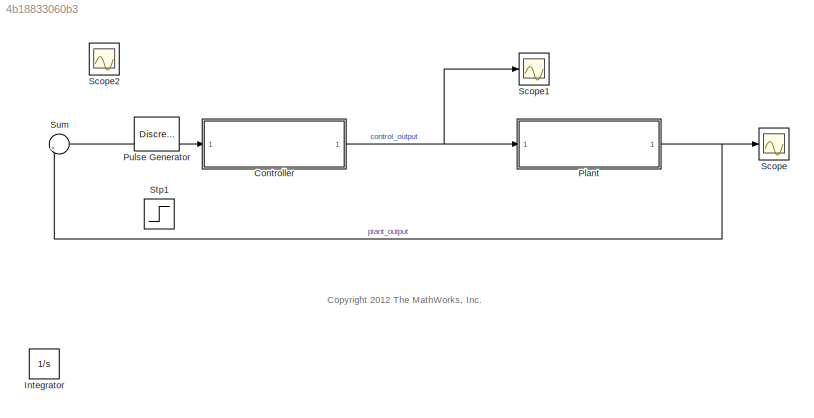
MODEL slx_4b18833060b3
KIND model
BLOCK [ModelReference] Controller
  CopyOfModelName = feedback_control_pidzg.slx
  DefaultDataLogging = on
  ModelNameDialog = feedback_control_pidzg.slx
  ModelReferenceVersion = 1.47
  Ports = [1, 1]
BLOCK [Integrator] Integrator
  Ports = [1, 1]
BLOCK [ModelReference] Plant
  CopyOfModelName = feedback_plant
  DefaultDataLogging = on
  ModelNameDialog = feedback_plant
  ModelReferenceVersion = 1.22
  Ports = [1, 1]
BLOCK [DiscretePulseGenerator] Pulse Generator
  IOType = siggen
  Period = 4
  Ports = [0, 1]
  PulseType = Time based
  PulseWidth = 50
BLOCK [Scope] Scope
  DataFormat = StructureWithTime
  Floating = off
  LimitDataPoints = off
  NumInputPorts = 1
  Ports = [1]
  SampleTime = 0
  SaveToWorkspace = on
  ShowLegends = off
  YMax = 1.4
  YMin = 0
BLOCK [Scope] Scope1
  DataFormat = StructureWithTime
  Floating = off
  LimitDataPoints = off
  NumInputPorts = 1
  Ports = [1]
  SampleTime = 0
  SaveName = ScopeData1
  SaveToWorkspace = on
  ShowLegends = off
  YMax = 1.4
  YMin = 0
BLOCK [Scope] Scope2
  DataFormat = StructureWithTime
  Floating = off
  LimitDataPoints = off
  NumInputPorts = 1
  Ports = [1]
  SampleTime = 0
  SaveName = ScopeData2
  SaveToWorkspace = on
  ShowLegends = off
  YMax = 1.4
  YMin = 0
BLOCK [Step] Stp1
  IOType = siggen
  SampleTime = 0
  Time = 4
BLOCK [Sum] Sum
  IconShape = round
  InputSameDT = off
  Inputs = |+-
  OutDataTypeStr = Inherit: Inherit via internal rule
  Ports = [2, 1]
  SaturateOnIntegerOverflow = off
ANNOTATION (root): <copyright redacted>
NET Controller:1 -> Plant:1, Scope1:1
NET Plant:1 -> Scope:1, Sum:2
LINE Sum:1 -> Controller:1
note: NET lines group one-source signal fan-out (src -> all destinations, sorted); 1:1 wires keep LINE
